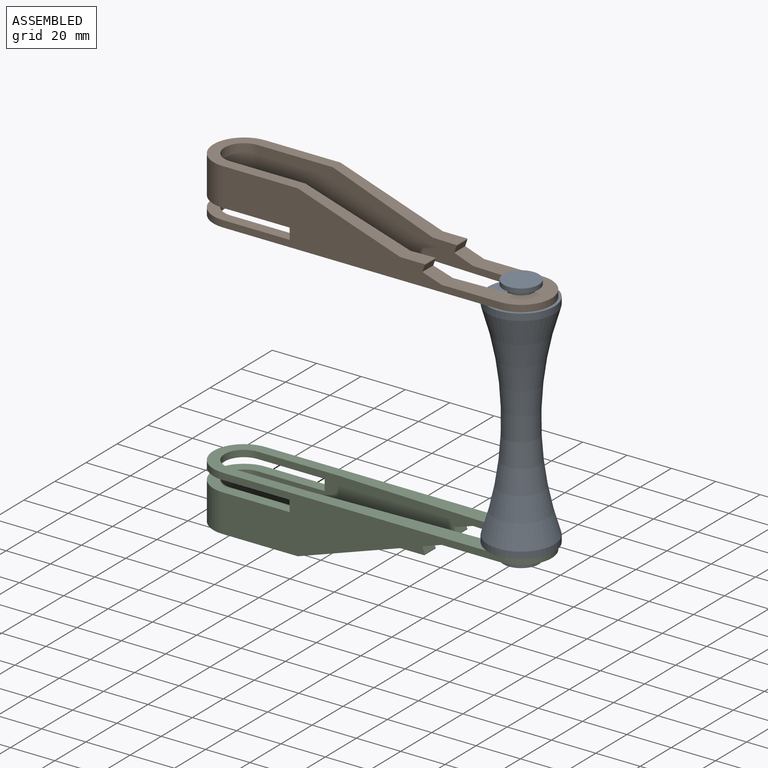
[diagram: assembled view]
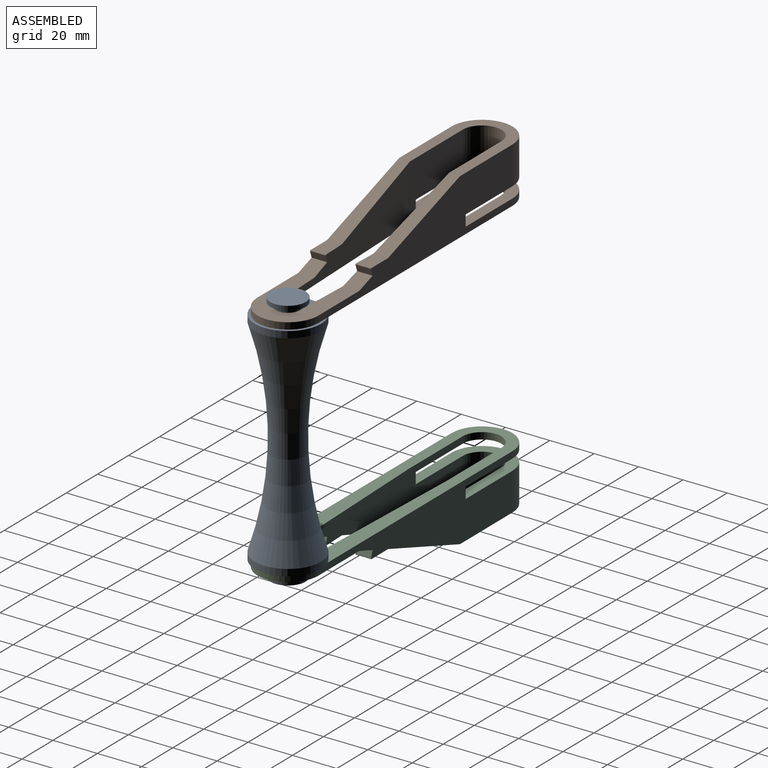
[diagram: assembled view, second angle]
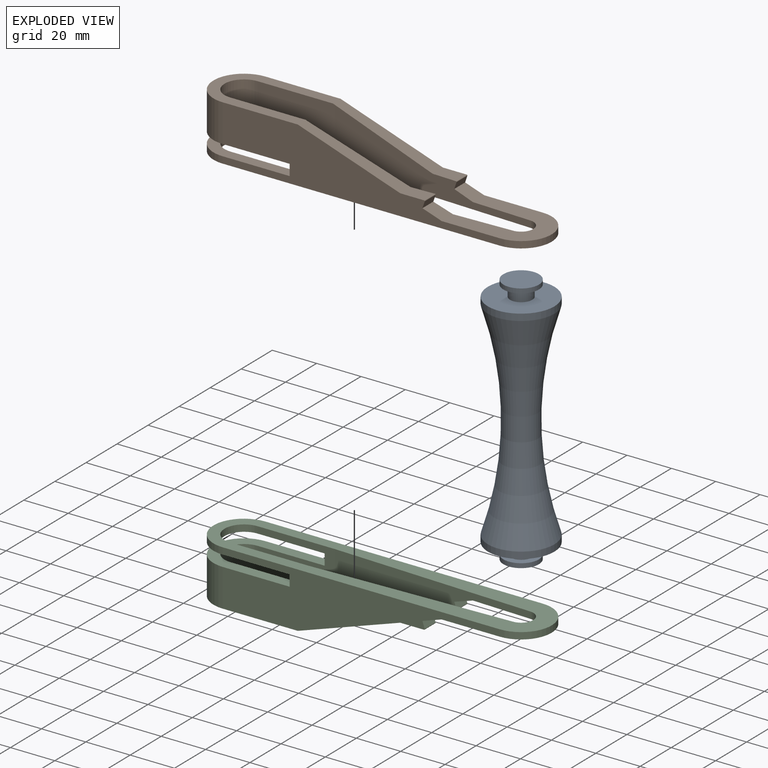
[diagram: exploded view]
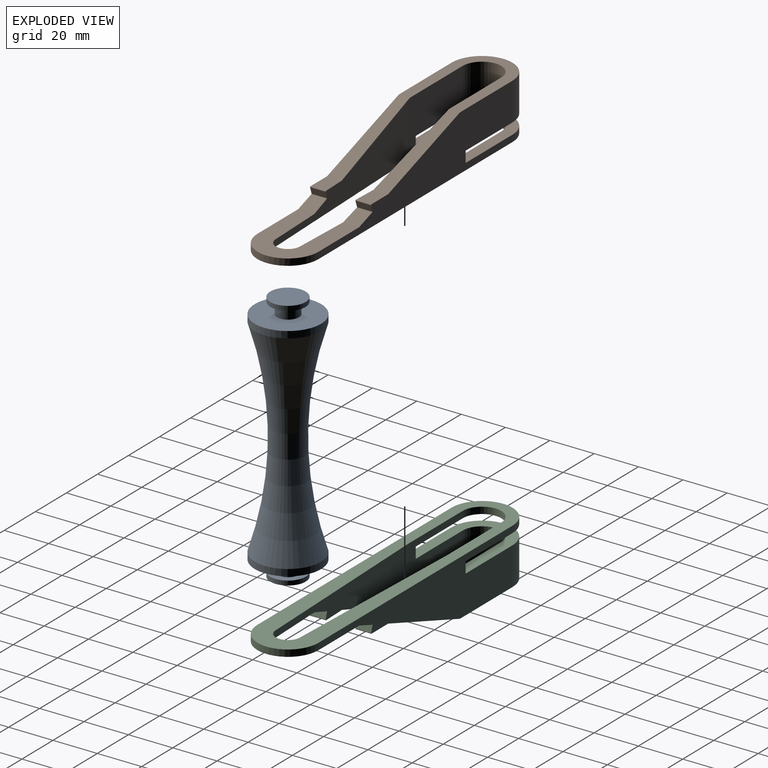
[diagram: exploded view, second angle]
ASSEMBLY  parts=3 mates=2
PART A: 13 faces, bbox 110.3x110.3x213 mm
  f0: cylinder r=8mm len=16mm, axis (0,0,-1), area 100.5mm2, adj f1,f12
  f1: plane 16x16mm, normal (0,0,1), area 201.1mm2, adj f0
  f2: plane 16x16mm, normal (0,0,-1), area 201.1mm2, adj f3
  f3: cylinder r=8mm len=16mm, axis (0,0,-1), area 100.5mm2, adj f2,f4
  f4: plane 16x16mm, normal (0,0,1), area 122.5mm2, adj f3,f5
  f5: cylinder r=5mm len=10mm, axis (0,0,-1), area 157.1mm2, adj f4,f6
  f6: plane 30x30mm, normal (0,0,-1), area 628.3mm2, adj f5,f7
  f7: cylinder r=15mm len=30mm, axis (0,0,-1), area 282.7mm2, adj f6,f8
  f8: torus R=157.45mm, axis (0,0,-1), area 5991.1mm2, adj f7,f9
  f9: cylinder r=15mm len=30mm, axis (0,0,-1), area 282.7mm2, adj f8,f10
  f10: plane 30x30mm, normal (0,0,1), area 628.3mm2, adj f9,f11
  f11: cylinder r=5mm len=10mm, axis (0,0,-1), area 157.1mm2, adj f10,f12
  f12: plane 16x16mm, normal (0,0,-1), area 122.5mm2, adj f0,f11
PART B: 29 faces, bbox 152.5x25x27.5 mm
  f0: cylinder r=13.75mm len=27.5mm, axis (0,1,0), area 129.6mm2, adj f4,f12,f13,f14
  f1: cylinder r=8.75mm len=17.5mm, axis (0,1,0), area 82.5mm2, adj f7,f11,f13,f14
  f2: plane 47.64x27.5mm, normal (0,-1,0), area 515.6mm2, adj f3,f4,f6,f7,f11,f12,f23,f24
  f3: cylinder r=13.75mm len=27.5mm, axis (0,1,0), area 734.3mm2, adj f2,f4,f12,f15
  f4: plane 125x25mm, normal (0,0,-1), area 1701.8mm2, adj f0,f2,f3,f5,f13,f14,f15,f16
  f5: cylinder r=13.75mm len=27.5mm, axis (0,1,0), area 129.6mm2, adj f4,f12,f13,f18
  f6: cylinder r=8.75mm len=17.5mm, axis (0,1,0), area 467.3mm2, adj f2,f7,f11,f15
  f7: plane 35x25mm, normal (0,0,-1), area 723.7mm2, adj f1,f2,f6,f8,f13,f14,f15,f17
  f8: plane 89.83x24.63mm, normal (-0.04,0,-1), area 978.2mm2, adj f7,f9,f13,f18,f24,f25,f26,f27
  f9: cylinder r=5.5mm len=11mm, axis (0,1,0), area 52.4mm2, adj f8,f10,f13,f18
  f10: plane 90.01x24.63mm, normal (-0.04,0,1), area 978.8mm2, adj f9,f11,f13,f18,f19,f20,f21,f22
  f11: plane 35x25mm, normal (0,0,1), area 723.7mm2, adj f1,f2,f6,f10,f13,f14,f15,f16
  f12: plane 125x25mm, normal (0,0,1), area 1701.8mm2, adj f0,f2,f3,f5,f13,f14,f15,f17
  f13: plane 152.5x27.5mm, normal (0,1,0), area 1969.1mm2, adj f0,f1,f4,f5,f7,f8,f9,f10
  f14: plane 43.97x27.5mm, normal (0,-1,0), area 478.9mm2, adj f0,f1,f4,f7,f11,f12,f16,f17
  f15: plane 43.97x27.5mm, normal (0,1,0), area 478.9mm2, adj f3,f4,f6,f7,f11,f12,f16,f17
  f16: plane 5x5mm, normal (-1,0,0), area 25mm2, adj f4,f11,f14,f15
  f17: plane 5x5mm, normal (-1,0,0), area 25mm2, adj f7,f12,f14,f15
  f18: plane 40x27.5mm, normal (0,-1,0), area 657.9mm2, adj f4,f5,f8,f9,f10,f12,f19,f25
  f19: plane 8.65x7.3mm, normal (0.32,-0.95,0), area 65.2mm2, adj f4,f10,f18,f20
  f20: plane 7.03x3mm, normal (0.95,0.32,0), area 22.2mm2, adj f4,f10,f19,f21
  f21: cylinder r=0.3mm len=7.03mm, axis (0,0,1), area 4mm2, adj f4,f10,f20,f22
  f22: plane 10.73x7.02mm, normal (0,-1,0), area 73.2mm2, adj f4,f10,f21,f23
  f23: plane 46.21x15.68mm, normal (0.32,-0.95,0), area 282.8mm2, adj f2,f4,f10,f11,f22
  f24: plane 46.21x15.68mm, normal (0.32,-0.95,0), area 282.9mm2, adj f2,f7,f8,f12,f28
  f25: plane 8.65x7.31mm, normal (0.32,-0.95,0), area 65.3mm2, adj f8,f12,f18,f26
  f26: plane 7.03x3mm, normal (0.95,0.32,0), area 22.2mm2, adj f8,f12,f25,f27
  f27: cylinder r=0.3mm len=7.03mm, axis (0,0,1), area 4mm2, adj f8,f12,f26,f28
  f28: plane 10.73x7.02mm, normal (0,-1,0), area 73.3mm2, adj f8,f12,f24,f27
PART C: same geometry as B
PLACE A t=(63.58,12.48,-79.17)mm
PLACE B rot(axis=(-1,0,0),90deg) t=(-61.42,12.48,-29.17)mm
PLACE C rot(axis=(1,0,0),90deg) t=(-61.42,12.48,-129.17)mm
MATE revolute A.f0 <-> B.f5  axis (0,0,1) through (63.58,12.48,-29.17)mm
MATE revolute C.f5 <-> A.f0  axis (0,0,1) through (63.58,12.48,-129.17)mm
